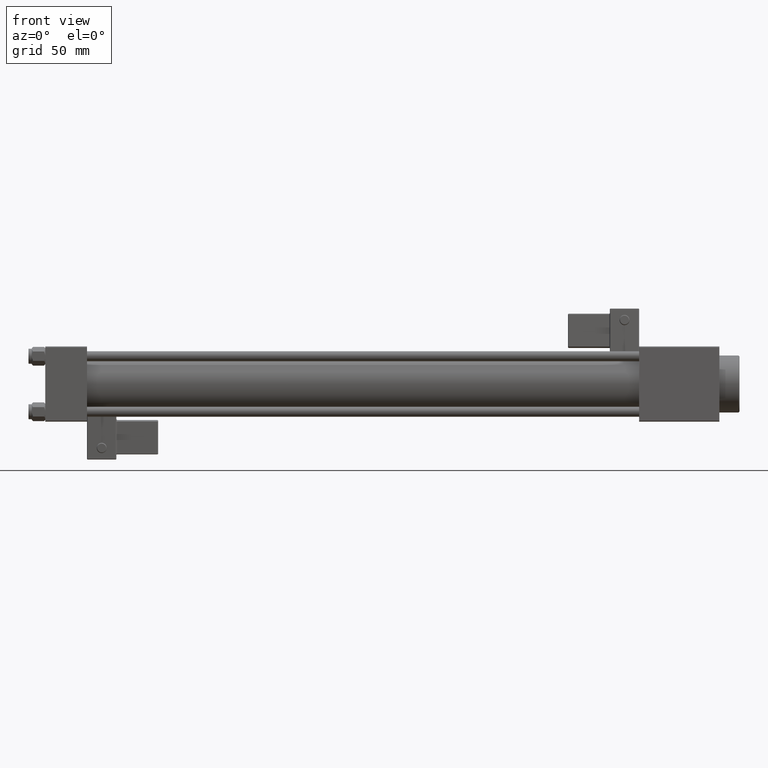
[diagram: clean part render]
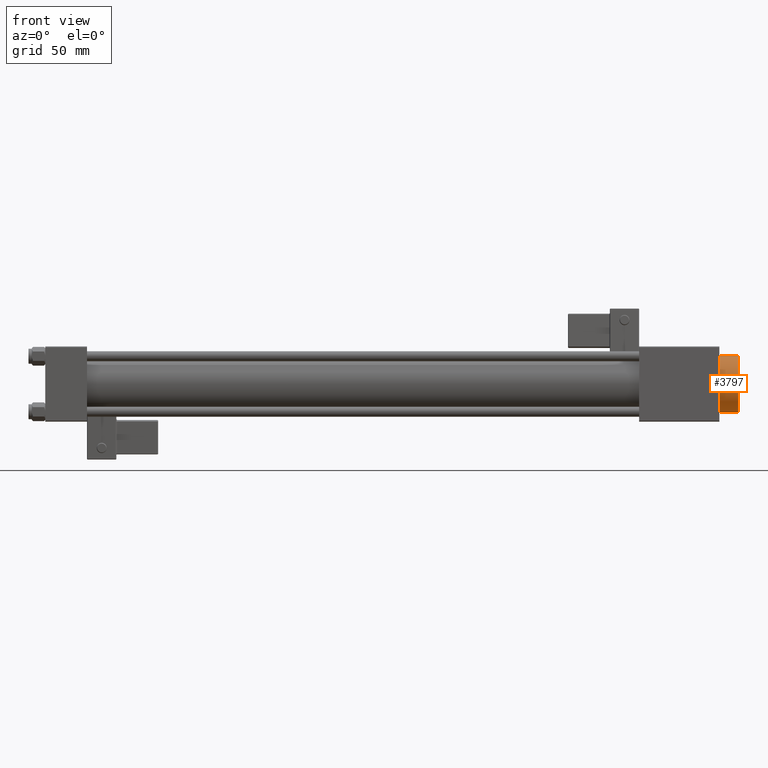
[diagram: same view with one face highlighted and labeled with its STEP entity id]
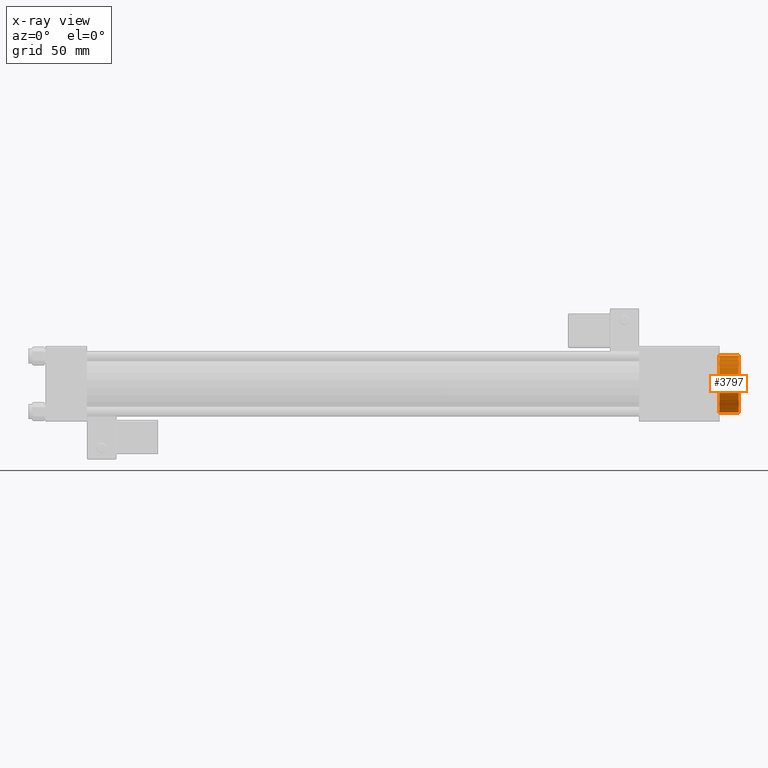
[diagram: x-ray of the same camera — body ghosted, the highlighted face saturated]
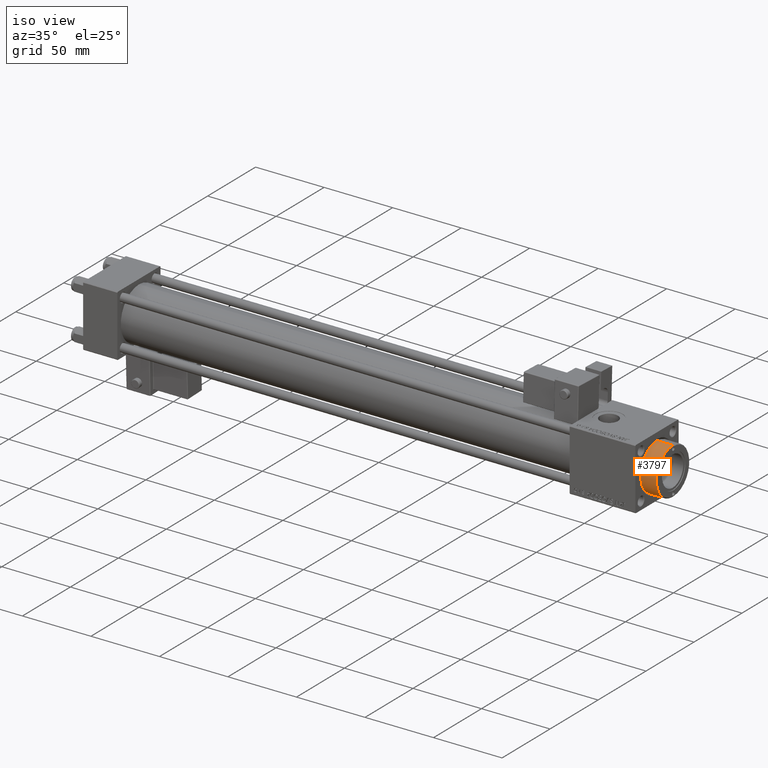
[diagram: same view with one face highlighted and labeled with its STEP entity id]
A machine part, front view. The second image highlights one B-rep face of the part: STEP entity #3797.
The next image is the same camera in x-ray: the body ghosted, the highlighted face saturated — about 0% of this face is hidden behind the body in this view.
A second angle (iso view) of the same face is appended — the face is thin or edge-on in the first view.
In plain terms, the highlighted cylindrical surface (edge-blend (fillet) strip) has radius 17 mm, axis along (-1, -0, -0).
Its self-contained STEP definition (entity closure, byte-faithful):
#1859 = CARTESIAN_POINT ( 'NONE',  ( 0.000000000000000000, 0.000000000000000000, 40.70000000000000284 ) ) ;
#3797 = ADVANCED_FACE ( 'NONE', ( #46399 ), #42375, .T. ) ;
#5088 = CARTESIAN_POINT ( 'NONE',  ( -17.00000000000000000, 0.000000000000000000, 28.69999999999999929 ) ) ;
#5637 = DIRECTION ( 'NONE',  ( -0.000000000000000000, -0.000000000000000000, -1.000000000000000000 ) ) ;
#6595 = CARTESIAN_POINT ( 'NONE',  ( 17.00000000000000000, 2.081899558550500280E-15, 28.69999999999999929 ) ) ;
#8318 = VECTOR ( 'NONE', #20511, 1000.000000000000000 ) ;
#10806 = VERTEX_POINT ( 'NONE', #5088 ) ;
#12072 = ORIENTED_EDGE ( 'NONE', *, *, #12140, .T. ) ;
#12140 = EDGE_CURVE ( 'NONE', #39358, #10806, #17533, .T. ) ;
#13097 = VERTEX_POINT ( 'NONE', #21848 ) ;
#16220 = VECTOR ( 'NONE', #42755, 1000.000000000000000 ) ;
#17533 = LINE ( 'NONE', #37927, #16220 ) ;
#18215 = DIRECTION ( 'NONE',  ( -1.000000000000000000, 0.000000000000000000, 0.000000000000000000 ) ) ;
#20511 = DIRECTION ( 'NONE',  ( -0.000000000000000000, -0.000000000000000000, -1.000000000000000000 ) ) ;
#20951 = DIRECTION ( 'NONE',  ( 1.000000000000000000, 0.000000000000000000, 0.000000000000000000 ) ) ;
#21848 = CARTESIAN_POINT ( 'NONE',  ( 17.00000000000000000, 2.081899558550500280E-15, 40.19999999999999574 ) ) ;
#23537 = AXIS2_PLACEMENT_3D ( 'NONE', #50265, #37140, #49996 ) ;
#25334 = CARTESIAN_POINT ( 'NONE',  ( 17.00000000000000000, 2.081899558550500280E-15, 40.70000000000000284 ) ) ;
#26034 = DIRECTION ( 'NONE',  ( 0.000000000000000000, 0.000000000000000000, -1.000000000000000000 ) ) ;
#29571 = VERTEX_POINT ( 'NONE', #6595 ) ;
#36395 = CIRCLE ( 'NONE', #23537, 17.00000000000000000 ) ;
#37140 = DIRECTION ( 'NONE',  ( 0.000000000000000000, 0.000000000000000000, 1.000000000000000000 ) ) ;
#37927 = CARTESIAN_POINT ( 'NONE',  ( -17.00000000000000000, 0.000000000000000000, 40.70000000000000284 ) ) ;
#39358 = VERTEX_POINT ( 'NONE', #39803 ) ;
#39416 = ORIENTED_EDGE ( 'NONE', *, *, #49160, .F. ) ;
#39803 = CARTESIAN_POINT ( 'NONE',  ( -17.00000000000000000, 0.000000000000000000, 40.19999999999999574 ) ) ;
#41949 = LINE ( 'NONE', #25334, #8318 ) ;
#42375 = CYLINDRICAL_SURFACE ( 'NONE', #44372, 17.00000000000000000 ) ;
#42755 = DIRECTION ( 'NONE',  ( -0.000000000000000000, -0.000000000000000000, -1.000000000000000000 ) ) ;
#42865 = EDGE_CURVE ( 'NONE', #10806, #29571, #36395, .T. ) ;
#44181 = EDGE_LOOP ( 'NONE', ( #39416, #49684, #12072, #51856 ) ) ;
#44372 = AXIS2_PLACEMENT_3D ( 'NONE', #1859, #5637, #18215 ) ;
#45618 = CARTESIAN_POINT ( 'NONE',  ( 0.000000000000000000, 0.000000000000000000, 40.19999999999999574 ) ) ;
#46033 = AXIS2_PLACEMENT_3D ( 'NONE', #45618, #26034, #20951 ) ;
#46399 = FACE_OUTER_BOUND ( 'NONE', #44181, .T. ) ;
#49160 = EDGE_CURVE ( 'NONE', #13097, #29571, #41949, .T. ) ;
#49684 = ORIENTED_EDGE ( 'NONE', *, *, #52158, .T. ) ;
#49996 = DIRECTION ( 'NONE',  ( 1.000000000000000000, 0.000000000000000000, 0.000000000000000000 ) ) ;
#50265 = CARTESIAN_POINT ( 'NONE',  ( 0.000000000000000000, 0.000000000000000000, 28.69999999999999929 ) ) ;
#51856 = ORIENTED_EDGE ( 'NONE', *, *, #42865, .T. ) ;
#52038 = CIRCLE ( 'NONE', #46033, 17.00000000000000000 ) ;
#52158 = EDGE_CURVE ( 'NONE', #13097, #39358, #52038, .T. ) ;